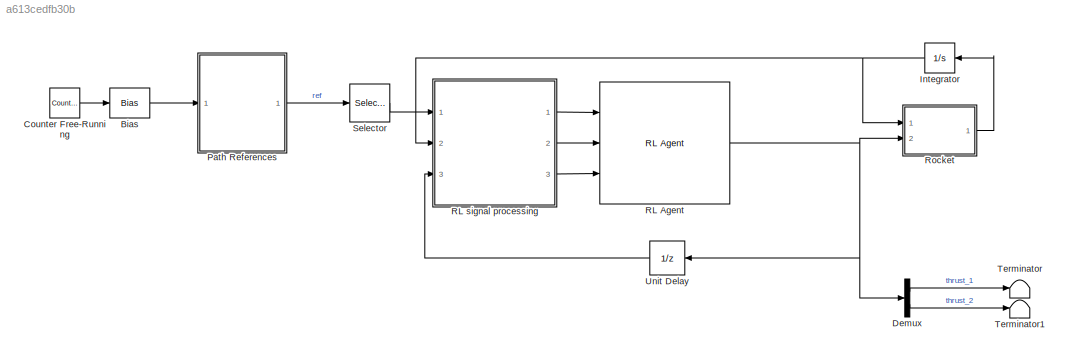
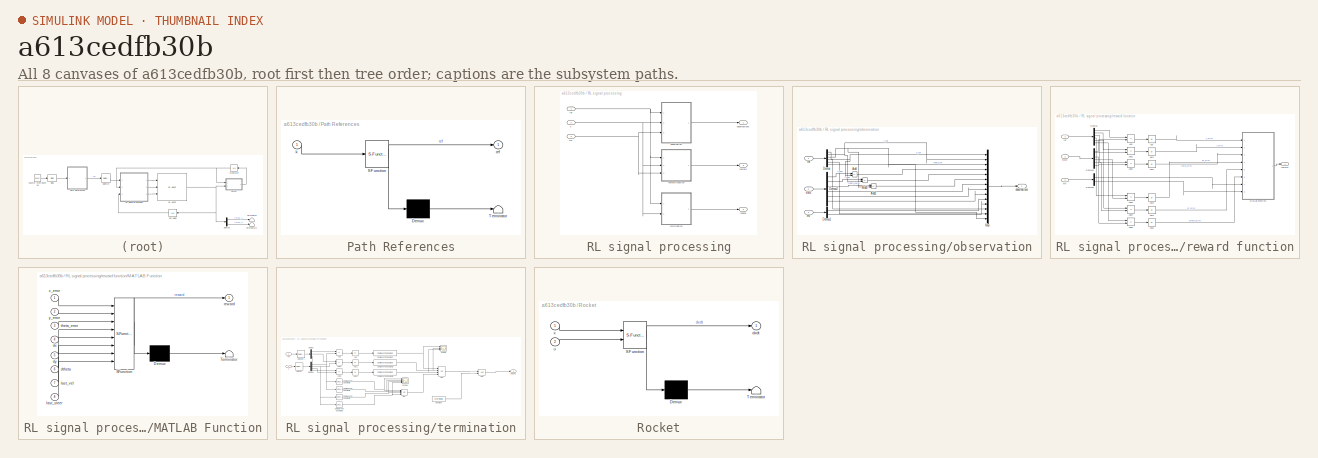
[diagram: thumbnail index - all 8 canvases of the model, root first then tree order]
MODEL slx_a613cedfb30b
KIND model
CONFIG AbsTol = auto
CONFIG EnableMultiTasking = off
CONFIG FixedStep = Ts
CONFIG MaxStep = auto
CONFIG MinStep = auto
CONFIG RelTol = 1e-3
CONFIG SampleTimeConstraint = Unconstrained
CONFIG SolverName = FixedStepAuto
CONFIG StartTime = 0.0
CONFIG StopTime = T
BLOCK [Bias] Bias
  Bias = 1
  SaturateOnIntegerOverflow = off
BLOCK [Reference] Counter Free-Running  REF=simulink/Sources/Counter
Free-Running
  Ports = [0, 1]
  SourceBlock = simulink/Sources/Counter\nFree-Running
  SourceProductBaseCode = SL
  SourceType = Counter Free-Running
BLOCK [Demux] Demux
  Outputs = 2
  Ports = [1, 2]
BLOCK [Integrator] Integrator
  InitialCondition = [xpos0;60;0;0;0;0]
  Ports = [1, 1]
BLOCK [SubSystem] Path References
  ErrorFcn = Stateflow.Translate.translate
  PermitHierarchicalResolution = ExplicitOnly
  Ports = [1, 1]
  RequestExecContextInheritance = off
  SFBlockType = MATLAB Function
  TreatAsAtomicUnit = on
BLOCK [Demux] Path References/ Demux 
  Outputs = 1
  Ports = [1, 1]
BLOCK [S-Function] Path References/ SFunction 
  EnableBusSupport = on
  FunctionName = sf_sfun
  Parameters = pLander,references
  PortCounts = [1 2]
  Ports = [1, 2]
  SFcnIsStateOwnerBlock = off
  SFunctionDeploymentMode = off
  Tag = Stateflow S-Function 1
BLOCK [Terminator] Path References/ Terminator 
BLOCK [Inport] Path References/k
BLOCK [Outport] Path References/ref
BLOCK [Reference] RL Agent  REF=rllib/RL Agent
  Ports = [3, 1]
  SourceBlock = rllib/RL Agent
  SourceProductBaseCode = RL
  SourceType = RL Agent
BLOCK [SubSystem] RL signal processing
  Ports = [3, 3]
  RequestExecContextInheritance = off
BLOCK [Outport] RL signal processing/isdone
  Port = 3
BLOCK [Inport] RL signal processing/mv
  Port = 3
BLOCK [SubSystem] RL signal processing/observation
  Ports = [3, 1]
  RequestExecContextInheritance = off
BLOCK [Sum] RL signal processing/observation/Add
  IconShape = rectangular
  Inputs = +-
  Ports = [2, 1]
BLOCK [Sum] RL signal processing/observation/Add1
  IconShape = rectangular
  Inputs = +-
  Ports = [2, 1]
BLOCK [Sum] RL signal processing/observation/Add2
  IconShape = rectangular
  Inputs = +-
  Ports = [2, 1]
BLOCK [Demux] RL signal processing/observation/Demux
  Outputs = 6
  Ports = [1, 6]
BLOCK [Demux] RL signal processing/observation/Demux1
  Outputs = 2
  Ports = [1, 2]
BLOCK [Demux] RL signal processing/observation/Demux2
  Outputs = 6
  Ports = [1, 6]
BLOCK [Mux] RL signal processing/observation/Mux
  DisplayOption = bar
  Inputs = 14
  Ports = [14, 1]
BLOCK [Inport] RL signal processing/observation/mv
  Port = 3
BLOCK [Outport] RL signal processing/observation/observations
BLOCK [Inport] RL signal processing/observation/ref
BLOCK [Inport] RL signal processing/observation/state
  Port = 2
BLOCK [Outport] RL signal processing/observations
BLOCK [Inport] RL signal processing/ref
BLOCK [Outport] RL signal processing/reward
  Port = 2
BLOCK [SubSystem] RL signal processing/reward function
  Ports = [3, 1]
  RequestExecContextInheritance = off
BLOCK [Abs] RL signal processing/reward function/Abs
  SaturateOnIntegerOverflow = off
BLOCK [Abs] RL signal processing/reward function/Abs1
  SaturateOnIntegerOverflow = off
BLOCK [Abs] RL signal processing/reward function/Abs2
  SaturateOnIntegerOverflow = off
BLOCK [Abs] RL signal processing/reward function/Abs3
  SaturateOnIntegerOverflow = off
BLOCK [Abs] RL signal processing/reward function/Abs4
  SaturateOnIntegerOverflow = off
BLOCK [Abs] RL signal processing/reward function/Abs5
  SaturateOnIntegerOverflow = off
BLOCK [Sum] RL signal processing/reward function/Add
  IconShape = rectangular
  Inputs = +-
  Ports = [2, 1]
BLOCK [Sum] RL signal processing/reward function/Add1
  IconShape = rectangular
  Inputs = +-
  Ports = [2, 1]
BLOCK [Sum] RL signal processing/reward function/Add2
  IconShape = rectangular
  Inputs = +-
  Ports = [2, 1]
BLOCK [Sum] RL signal processing/reward function/Add3
  IconShape = rectangular
  Inputs = +-
  Ports = [2, 1]
BLOCK [Sum] RL signal processing/reward function/Add4
  IconShape = rectangular
  Inputs = +-
  Ports = [2, 1]
BLOCK [Sum] RL signal processing/reward function/Add5
  IconShape = rectangular
  Inputs = +-
  Ports = [2, 1]
BLOCK [Demux] RL signal processing/reward function/Demux
  Outputs = 6
  Ports = [1, 6]
BLOCK [Demux] RL signal processing/reward function/Demux1
  Outputs = 6
  Ports = [1, 6]
BLOCK [Demux] RL signal processing/reward function/Demux2
  Outputs = 2
  Ports = [1, 2]
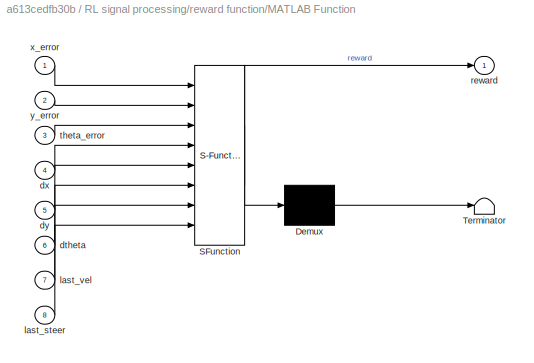
BLOCK [SubSystem] RL signal processing/reward function/MATLAB Function
  ErrorFcn = Stateflow.Translate.translate
  PermitHierarchicalResolution = ExplicitOnly
  Ports = [8, 1]
  RequestExecContextInheritance = off
  SFBlockType = MATLAB Function
  TreatAsAtomicUnit = on
BLOCK [Demux] RL signal processing/reward function/MATLAB Function/ Demux 
  Outputs = 1
  Ports = [1, 1]
BLOCK [S-Function] RL signal processing/reward function/MATLAB Function/ SFunction 
  EnableBusSupport = on
  FunctionName = sf_sfun
  PortCounts = [8 2]
  Ports = [8, 2]
  SFcnIsStateOwnerBlock = off
  SFunctionDeploymentMode = off
  Tag = Stateflow S-Function 3
BLOCK [Terminator] RL signal processing/reward function/MATLAB Function/ Terminator 
BLOCK [Inport] RL signal processing/reward function/MATLAB Function/dtheta
  Port = 6
BLOCK [Inport] RL signal processing/reward function/MATLAB Function/dx
  Port = 4
BLOCK [Inport] RL signal processing/reward function/MATLAB Function/dy
  Port = 5
BLOCK [Inport] RL signal processing/reward function/MATLAB Function/last_steer
  Port = 8
BLOCK [Inport] RL signal processing/reward function/MATLAB Function/last_vel
  Port = 7
BLOCK [Outport] RL signal processing/reward function/MATLAB Function/reward
BLOCK [Inport] RL signal processing/reward function/MATLAB Function/theta_error
  Port = 3
BLOCK [Inport] RL signal processing/reward function/MATLAB Function/x_error
BLOCK [Inport] RL signal processing/reward function/MATLAB Function/y_error
  Port = 2
BLOCK [Inport] RL signal processing/reward function/mv
  Port = 3
BLOCK [Inport] RL signal processing/reward function/ref
BLOCK [Outport] RL signal processing/reward function/reward
BLOCK [Inport] RL signal processing/reward function/state
  Port = 2
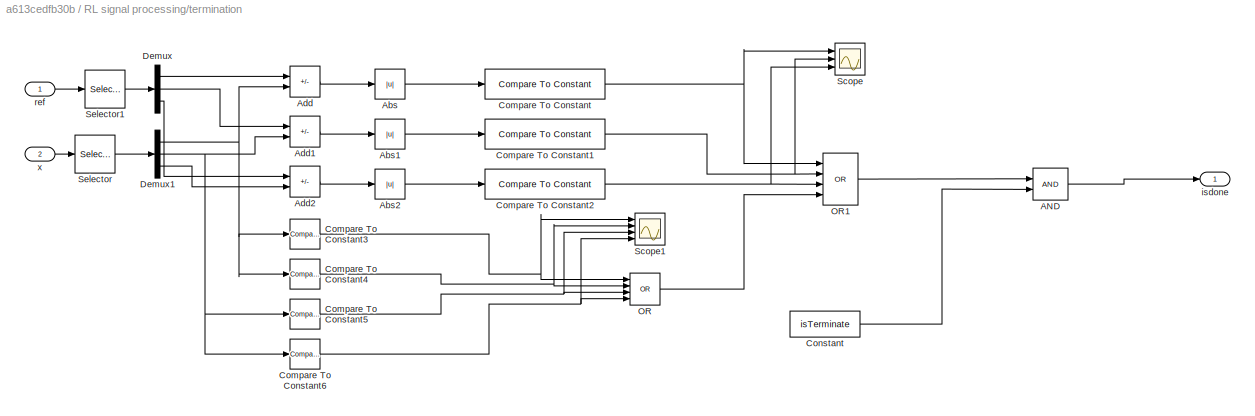
BLOCK [SubSystem] RL signal processing/termination
  Ports = [2, 1]
  RequestExecContextInheritance = off
BLOCK [Logic] RL signal processing/termination/AND
  AllPortsSameDT = off
  IconShape = distinctive
  OutDataTypeStr = boolean
  Ports = [2, 1]
BLOCK [Abs] RL signal processing/termination/Abs
  SaturateOnIntegerOverflow = off
BLOCK [Abs] RL signal processing/termination/Abs1
  SaturateOnIntegerOverflow = off
BLOCK [Abs] RL signal processing/termination/Abs2
  SaturateOnIntegerOverflow = off
BLOCK [Sum] RL signal processing/termination/Add
  IconShape = rectangular
  Inputs = +-
  Ports = [2, 1]
BLOCK [Sum] RL signal processing/termination/Add1
  IconShape = rectangular
  Inputs = +-
  Ports = [2, 1]
BLOCK [Sum] RL signal processing/termination/Add2
  IconShape = rectangular
  Inputs = +-
  Ports = [2, 1]
BLOCK [Reference] RL signal processing/termination/Compare To Constant  REF=simulink/Logic and Bit
Operations/Compare
To Constant
  Ports = [1, 1]
  SourceBlock = simulink/Logic and Bit\nOperations/Compare\nTo Constant
  SourceProductBaseCode = SL
  SourceType = Compare To Constant
BLOCK [Reference] RL signal processing/termination/Compare To Constant1  REF=simulink/Logic and Bit
Operations/Compare
To Constant
  Ports = [1, 1]
  SourceBlock = simulink/Logic and Bit\nOperations/Compare\nTo Constant
  SourceProductBaseCode = SL
  SourceType = Compare To Constant
BLOCK [Reference] RL signal processing/termination/Compare To Constant2  REF=simulink/Logic and Bit
Operations/Compare
To Constant
  Ports = [1, 1]
  SourceBlock = simulink/Logic and Bit\nOperations/Compare\nTo Constant
  SourceProductBaseCode = SL
  SourceType = Compare To Constant
BLOCK [Reference] RL signal processing/termination/Compare To Constant3  REF=simulink/Logic and Bit
Operations/Compare
To Constant
  Ports = [1, 1]
  SourceBlock = simulink/Logic and Bit\nOperations/Compare\nTo Constant
  SourceProductBaseCode = SL
  SourceType = Compare To Constant
BLOCK [Reference] RL signal processing/termination/Compare To Constant4  REF=simulink/Logic and Bit
Operations/Compare
To Constant
  Ports = [1, 1]
  SourceBlock = simulink/Logic and Bit\nOperations/Compare\nTo Constant
  SourceProductBaseCode = SL
  SourceType = Compare To Constant
BLOCK [Reference] RL signal processing/termination/Compare To Constant5  REF=simulink/Logic and Bit
Operations/Compare
To Constant
  Ports = [1, 1]
  SourceBlock = simulink/Logic and Bit\nOperations/Compare\nTo Constant
  SourceProductBaseCode = SL
  SourceType = Compare To Constant
BLOCK [Reference] RL signal processing/termination/Compare To Constant6  REF=simulink/Logic and Bit
Operations/Compare
To Constant
  Ports = [1, 1]
  SourceBlock = simulink/Logic and Bit\nOperations/Compare\nTo Constant
  SourceProductBaseCode = SL
  SourceType = Compare To Constant
BLOCK [Constant] RL signal processing/termination/Constant
  Value = isTerminate
BLOCK [Demux] RL signal processing/termination/Demux
  Outputs = 3
  Ports = [1, 3]
BLOCK [Demux] RL signal processing/termination/Demux1
  Outputs = 3
  Ports = [1, 3]
BLOCK [Logic] RL signal processing/termination/OR
  AllPortsSameDT = off
  IconShape = distinctive
  Inputs = 4
  Operator = OR
  OutDataTypeStr = boolean
  Ports = [4, 1]
BLOCK [Logic] RL signal processing/termination/OR1
  AllPortsSameDT = off
  IconShape = distinctive
  Inputs = 4
  Operator = OR
  OutDataTypeStr = boolean
  Ports = [4, 1]
BLOCK [Scope] RL signal processing/termination/Scope
  Floating = off
  NumInputPorts = 3
  Ports = [3]
  ScopeSpecificationString = Simulink.scopes.TimeScopeBlockCfg('CurrentConfiguration', extmgr.ConfigurationSet(extmgr.Configuration('Core','General UI',true),extmgr.Configuration('Core','Source UI',true),extmgr.Configuration('Sources','WiredSimulink',true),extmgr.Configuration('Visuals','Time Domain',true,'SerializedDisplays',{struct('MinYLimReal','-1.00000','MaxYLimReal','1.00000','YLabelReal','','MinYLimMag','0.00000','MaxY...<+2735ch>
BLOCK [Scope] RL signal processing/termination/Scope1
  Floating = off
  NumInputPorts = 4
  Ports = [4]
  ScopeSpecificationString = Simulink.scopes.TimeScopeBlockCfg('CurrentConfiguration', extmgr.ConfigurationSet(extmgr.Configuration('Core','General UI',true),extmgr.Configuration('Core','Source UI',true),extmgr.Configuration('Sources','WiredSimulink',true,'DataLoggingVariableName','ScopeData1'),extmgr.Configuration('Visuals','Time Domain',true,'SerializedDisplays',{struct('MinYLimReal','-1.00000','MaxYLimReal','1.00000','YLab...<+1477ch>
BLOCK [Selector] RL signal processing/termination/Selector
  IndexOptions = Index vector (dialog)
  Indices = [1 2 3]
  InputPortWidth = 6
  OutputSizes = 1
  Ports = [1, 1]
BLOCK [Selector] RL signal processing/termination/Selector1
  IndexOptions = Index vector (dialog)
  Indices = [1 2 3]
  InputPortWidth = 6
  OutputSizes = 1
  Ports = [1, 1]
BLOCK [Outport] RL signal processing/termination/isdone
BLOCK [Inport] RL signal processing/termination/ref
BLOCK [Inport] RL signal processing/termination/x
  Port = 2
BLOCK [Inport] RL signal processing/x
  Port = 2
BLOCK [SubSystem] Rocket
  ErrorFcn = Stateflow.Translate.translate
  PermitHierarchicalResolution = ExplicitOnly
  Ports = [2, 1]
  RequestExecContextInheritance = off
  SFBlockType = MATLAB Function
  TreatAsAtomicUnit = on
BLOCK [Demux] Rocket/ Demux 
  Outputs = 1
  Ports = [1, 1]
BLOCK [S-Function] Rocket/ SFunction 
  EnableBusSupport = on
  FunctionName = sf_sfun
  PortCounts = [2 2]
  Ports = [2, 2]
  SFcnIsStateOwnerBlock = off
  SFunctionDeploymentMode = off
  Tag = Stateflow S-Function 2
BLOCK [Terminator] Rocket/ Terminator 
BLOCK [Outport] Rocket/dxdt
BLOCK [Inport] Rocket/u
  Port = 2
BLOCK [Inport] Rocket/x
BLOCK [Selector] Selector
  IndexOptions = Index vector (dialog)
  Indices = [1 2 3 4 5 6]
  InputPortWidth = 66
  OutputSizes = 1
  Ports = [1, 1]
BLOCK [Terminator] Terminator
BLOCK [Terminator] Terminator1
BLOCK [UnitDelay] Unit Delay
  HasFrameUpgradeWarning = on
  InitialCondition = u0
  SampleTime = -1
LINE Bias:1 -> Path References:1
LINE Counter Free-Running:1 -> Bias:1
LINE Demux:1 -> Terminator:1
LINE Demux:2 -> Terminator1:1
NET Integrator:1 -> RL signal processing:2, Rocket:1
LINE Path References:1 -> Selector:1
NET RL Agent:1 -> Demux:1, Rocket:2, Unit Delay:1
NET RL signal processing/mv:1 -> RL signal processing/observation:3, RL signal processing/reward function:3
LINE RL signal processing/observation/Add1:1 -> RL signal processing/observation/Mux:5
LINE RL signal processing/observation/Add2:1 -> RL signal processing/observation/Mux:6
LINE RL signal processing/observation/Add:1 -> RL signal processing/observation/Mux:4
LINE RL signal processing/observation/Demux1:1 -> RL signal processing/observation/Mux:10
LINE RL signal processing/observation/Demux1:2 -> RL signal processing/observation/Mux:11
LINE RL signal processing/observation/Demux2:1 -> RL signal processing/observation/Add:1
LINE RL signal processing/observation/Demux2:2 -> RL signal processing/observation/Add1:1
LINE RL signal processing/observation/Demux2:3 -> RL signal processing/observation/Add2:1
LINE RL signal processing/observation/Demux2:4 -> RL signal processing/observation/Mux:7
LINE RL signal processing/observation/Demux2:5 -> RL signal processing/observation/Mux:8
LINE RL signal processing/observation/Demux2:6 -> RL signal processing/observation/Mux:9
NET RL signal processing/observation/Demux:1 -> RL signal processing/observation/Add:2, RL signal processing/observation/Mux:1
NET RL signal processing/observation/Demux:2 -> RL signal processing/observation/Add1:2, RL signal processing/observation/Mux:2
NET RL signal processing/observation/Demux:3 -> RL signal processing/observation/Add2:2, RL signal processing/observation/Mux:3
LINE RL signal processing/observation/Demux:4 -> RL signal processing/observation/Mux:12
LINE RL signal processing/observation/Demux:5 -> RL signal processing/observation/Mux:13
LINE RL signal processing/observation/Demux:6 -> RL signal processing/observation/Mux:14
LINE RL signal processing/observation/Mux:1 -> RL signal processing/observation/observations:1
LINE RL signal processing/observation/mv:1 -> RL signal processing/observation/Demux1:1
LINE RL signal processing/observation/ref:1 -> RL signal processing/observation/Demux:1
LINE RL signal processing/observation/state:1 -> RL signal processing/observation/Demux2:1
LINE RL signal processing/observation:1 -> RL signal processing/observations:1
NET RL signal processing/ref:1 -> RL signal processing/observation:1, RL signal processing/reward function:1, RL signal processing/termination:1
LINE RL signal processing/reward function/Abs1:1 -> RL signal processing/reward function/MATLAB Function:2
LINE RL signal processing/reward function/Abs2:1 -> RL signal processing/reward function/MATLAB Function:3
LINE RL signal processing/reward function/Abs3:1 -> RL signal processing/reward function/MATLAB Function:4
LINE RL signal processing/reward function/Abs4:1 -> RL signal processing/reward function/MATLAB Function:5
LINE RL signal processing/reward function/Abs5:1 -> RL signal processing/reward function/MATLAB Function:6
LINE RL signal processing/reward function/Abs:1 -> RL signal processing/reward function/MATLAB Function:1
LINE RL signal processing/reward function/Add1:1 -> RL signal processing/reward function/Abs1:1
LINE RL signal processing/reward function/Add2:1 -> RL signal processing/reward function/Abs2:1
LINE RL signal processing/reward function/Add3:1 -> RL signal processing/reward function/Abs3:1
LINE RL signal processing/reward function/Add4:1 -> RL signal processing/reward function/Abs4:1
LINE RL signal processing/reward function/Add5:1 -> RL signal processing/reward function/Abs5:1
LINE RL signal processing/reward function/Add:1 -> RL signal processing/reward function/Abs:1
LINE RL signal processing/reward function/Demux1:1 -> RL signal processing/reward function/Add:2
LINE RL signal processing/reward function/Demux1:2 -> RL signal processing/reward function/Add1:2
LINE RL signal processing/reward function/Demux1:3 -> RL signal processing/reward function/Add2:2
LINE RL signal processing/reward function/Demux1:4 -> RL signal processing/reward function/Add3:2
LINE RL signal processing/reward function/Demux1:5 -> RL signal processing/reward function/Add4:2
LINE RL signal processing/reward function/Demux1:6 -> RL signal processing/reward function/Add5:2
LINE RL signal processing/reward function/Demux2:1 -> RL signal processing/reward function/MATLAB Function:7
LINE RL signal processing/reward function/Demux2:2 -> RL signal processing/reward function/MATLAB Function:8
LINE RL signal processing/reward function/Demux:1 -> RL signal processing/reward function/Add:1
LINE RL signal processing/reward function/Demux:2 -> RL signal processing/reward function/Add1:1
LINE RL signal processing/reward function/Demux:3 -> RL signal processing/reward function/Add2:1
LINE RL signal processing/reward function/Demux:4 -> RL signal processing/reward function/Add3:1
LINE RL signal processing/reward function/Demux:5 -> RL signal processing/reward function/Add4:1
LINE RL signal processing/reward function/Demux:6 -> RL signal processing/reward function/Add5:1
LINE RL signal processing/reward function/MATLAB Function:1 -> RL signal processing/reward function/reward:1
LINE RL signal processing/reward function/mv:1 -> RL signal processing/reward function/Demux2:1
LINE RL signal processing/reward function/ref:1 -> RL signal processing/reward function/Demux:1
LINE RL signal processing/reward function/state:1 -> RL signal processing/reward function/Demux1:1
LINE RL signal processing/reward function:1 -> RL signal processing/reward:1
LINE RL signal processing/termination/AND:1 -> RL signal processing/termination/isdone:1
LINE RL signal processing/termination/Abs1:1 -> RL signal processing/termination/Compare To Constant1:1
LINE RL signal processing/termination/Abs2:1 -> RL signal processing/termination/Compare To Constant2:1
LINE RL signal processing/termination/Abs:1 -> RL signal processing/termination/Compare To Constant:1
LINE RL signal processing/termination/Add1:1 -> RL signal processing/termination/Abs1:1
LINE RL signal processing/termination/Add2:1 -> RL signal processing/termination/Abs2:1
LINE RL signal processing/termination/Add:1 -> RL signal processing/termination/Abs:1
NET RL signal processing/termination/Compare To Constant1:1 -> RL signal processing/termination/OR1:2, RL signal processing/termination/Scope:2
NET RL signal processing/termination/Compare To Constant2:1 -> RL signal processing/termination/OR1:3, RL signal processing/termination/Scope:3
NET RL signal processing/termination/Compare To Constant3:1 -> RL signal processing/termination/OR:1, RL signal processing/termination/Scope1:1
NET RL signal processing/termination/Compare To Constant4:1 -> RL signal processing/termination/OR:2, RL signal processing/termination/Scope1:2
NET RL signal processing/termination/Compare To Constant5:1 -> RL signal processing/termination/OR:3, RL signal processing/termination/Scope1:3
NET RL signal processing/termination/Compare To Constant6:1 -> RL signal processing/termination/OR:4, RL signal processing/termination/Scope1:4
NET RL signal processing/termination/Compare To Constant:1 -> RL signal processing/termination/OR1:1, RL signal processing/termination/Scope:1
LINE RL signal processing/termination/Constant:1 -> RL signal processing/termination/AND:2
NET RL signal processing/termination/Demux1:1 -> RL signal processing/termination/Add:2, RL signal processing/termination/Compare To Constant3:1, RL signal processing/termination/Compare To Constant4:1
NET RL signal processing/termination/Demux1:2 -> RL signal processing/termination/Add1:2, RL signal processing/termination/Compare To Constant5:1, RL signal processing/termination/Compare To Constant6:1
LINE RL signal processing/termination/Demux1:3 -> RL signal processing/termination/Add2:2
LINE RL signal processing/termination/Demux:1 -> RL signal processing/termination/Add:1
LINE RL signal processing/termination/Demux:2 -> RL signal processing/termination/Add1:1
LINE RL signal processing/termination/Demux:3 -> RL signal processing/termination/Add2:1
LINE RL signal processing/termination/OR1:1 -> RL signal processing/termination/AND:1
LINE RL signal processing/termination/OR:1 -> RL signal processing/termination/OR1:4
LINE RL signal processing/termination/Selector1:1 -> RL signal processing/termination/Demux:1
LINE RL signal processing/termination/Selector:1 -> RL signal processing/termination/Demux1:1
LINE RL signal processing/termination/ref:1 -> RL signal processing/termination/Selector1:1
LINE RL signal processing/termination/x:1 -> RL signal processing/termination/Selector:1
LINE RL signal processing/termination:1 -> RL signal processing/isdone:1
NET RL signal processing/x:1 -> RL signal processing/observation:2, RL signal processing/reward function:2, RL signal processing/termination:2
LINE RL signal processing:1 -> RL Agent:1
LINE RL signal processing:2 -> RL Agent:2
LINE RL signal processing:3 -> RL Agent:3
LINE Rocket:1 -> Integrator:1
LINE Selector:1 -> RL signal processing:1
LINE Unit Delay:1 -> RL signal processing:3
note: NET lines group one-source signal fan-out (src -> all destinations, sorted); 1:1 wires keep LINE
CHART Path References states=1 transitions=1
  STATE_LABEL 'eML_blk_kernel()'
  STATE_LABEL 'SCRIPT:\nfunction ref = fcn(k,references,pLander)\nref = RocketLanderReferenceSignal(k,references,pLander);\n'
CHART Rocket states=1 transitions=1
  STATE_LABEL 'eML_blk_kernel()'
  STATE_LABEL 'SCRIPT:\nfunction dxdt = fcn(x,u)\ndxdt = RocketStateFcn(x,u);\n\n'
CHART RL signal processing/reward function/MATLAB Function states=1 transitions=1
  STATE_LABEL 'eML_blk_kernel()'
  STATE_LABEL 'SCRIPT:\nfunction reward = reward(x_error, y_error, theta_error,dx, dy,dtheta,last_vel, last_steer)\n\nx_pos = exp(-x_error/3);\ny_pos = exp(-y_error/3);\ntheta_pos = 0.2*exp(-theta_error);\n\nposition_pos = x_pos + y_pos + theta_pos;\n\ndx_pos = exp(-dx/3);\ndy_pos = exp(-dy/3);\ndtheta_pos = exp(-dtheta);\nvel_pos = dx_pos + dtheta_pos + dy_pos;\n\npos_neg = -tanh(x_error/4) -tanh(y_error/5) -tanh(theta_error...<+413ch>'
CHART  states=0 transitions=0
CHART  states=0 transitions=0
CHART  states=0 transitions=0
